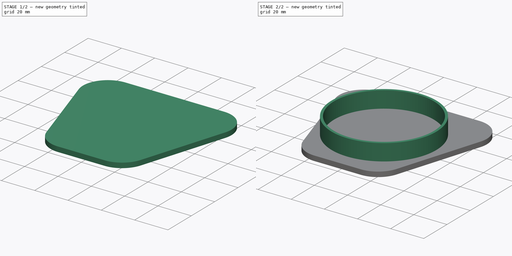
[diagram: build sequence overview — one tinted view per stage of 2, left to right]
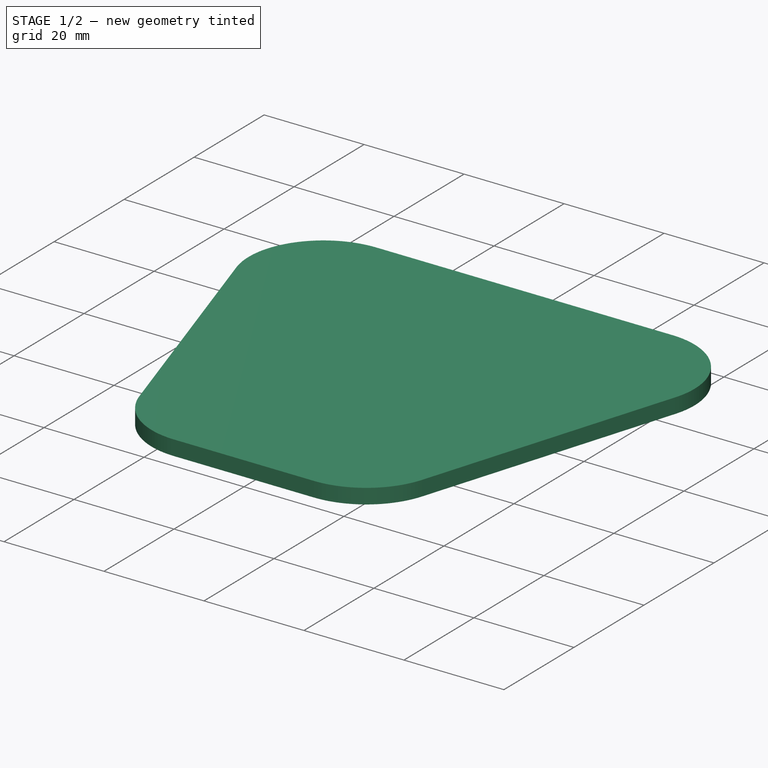
[diagram: stage 1 of 2 — iso view after this stage's code; geometry added in this stage tinted green]
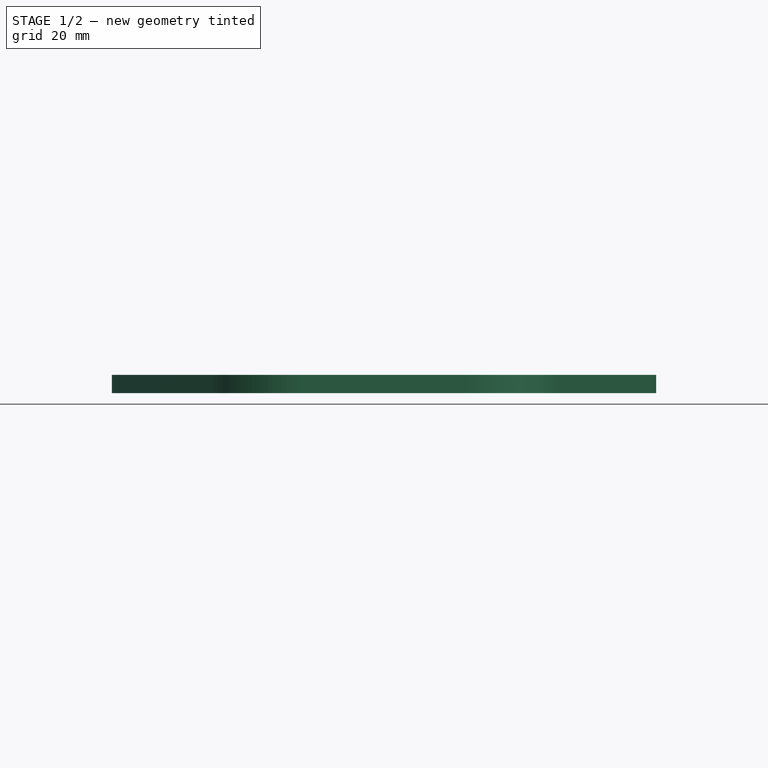
[diagram: stage 1 of 2 — front view after this stage's code; geometry added in this stage tinted green]
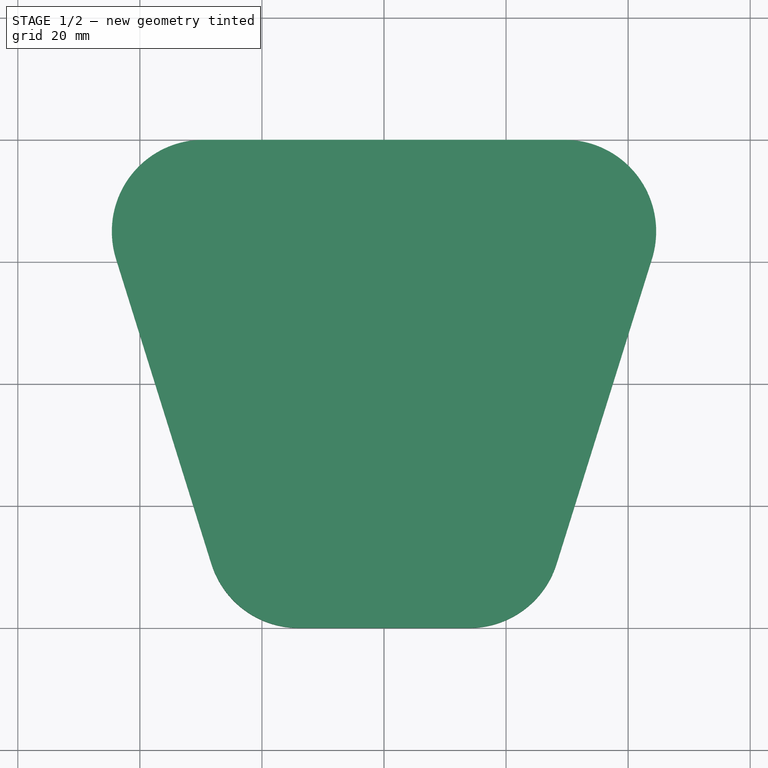
[diagram: stage 1 of 2 — top view after this stage's code; geometry added in this stage tinted green]
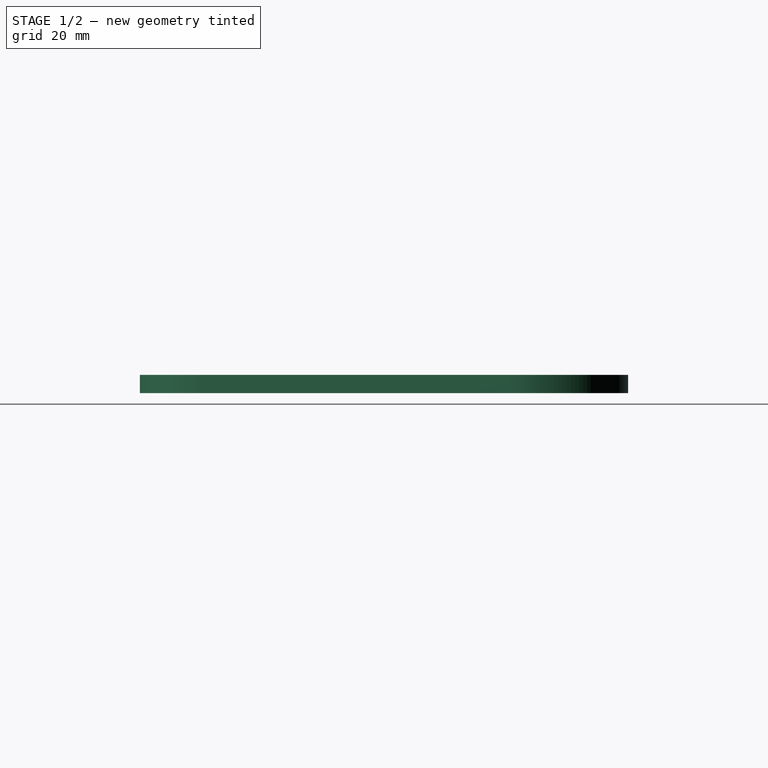
[diagram: stage 1 of 2 — right view after this stage's code; geometry added in this stage tinted green]
FCSTD DOCUMENT  (FreeCAD 2022.111R30764 (Git))
Label: speaker can stand
License: All rights reserved
LicenseURL: http://en.wikipedia.org/wiki/All_rights_reserved
objects: Sketcher::SketchObject×2, PartDesign::Pad×2, PartDesign::Body×1
note: 9 computed .brp shape members not serialized (recipe doc carries the construction recipe); baked Part::Feature solids carry a one-line shape summary decoded from their .brp

FEATURE [Sketcher::SketchObject] Sketch
  FullyConstrained = true
  MapMode = 5
  Support = -> [XY_Plane]
  TreeRank = 11
  sketch-geometry (14):
    g0: LineSegment StartX=29.5971 StartY=40 StartZ=0 EndX=-29.5971 EndY=40 EndZ=0
    g1: LineSegment StartX=-43.9143 StartY=20.5259 StartZ=0 EndX=-28.2893 EndY=-29.4741 EndZ=0
    g2: LineSegment StartX=-13.9721 StartY=-40 StartZ=0 EndX=13.9721 EndY=-40 EndZ=0
    g3: LineSegment StartX=28.2893 StartY=-29.4741 StartZ=0 EndX=43.9143 EndY=20.5259 EndZ=0
    g4: GeomPoint [constr] X=0 Y=40 Z=0
    g5: GeomPoint [constr] X=0 Y=-40 Z=0
    g6: ArcOfCircle CenterX=-29.5971 CenterY=25 CenterZ=0 NormalX=0 NormalY=0 NormalZ=1 AngleXU=0 Radius=15 StartAngle=1.5708 EndAngle=3.44448
    g7: GeomPoint [constr] X=-50 Y=40 Z=0
    g8: ArcOfCircle CenterX=29.5971 CenterY=25 CenterZ=0 NormalX=0 NormalY=0 NormalZ=1 AngleXU=0 Radius=15 StartAngle=5.9803 EndAngle=7.85398
    g9: GeomPoint [constr] X=50 Y=40 Z=0
    g10: ArcOfCircle CenterX=-13.9721 CenterY=-25 CenterZ=0 NormalX=0 NormalY=0 NormalZ=1 AngleXU=0 Radius=15 StartAngle=3.44448 EndAngle=4.71239
    g11: GeomPoint [constr] X=-25 Y=-40 Z=0
    g12: ArcOfCircle CenterX=13.9721 CenterY=-25 CenterZ=0 NormalX=0 NormalY=0 NormalZ=1 AngleXU=0 Radius=15 StartAngle=4.71239 EndAngle=5.9803
    g13: GeomPoint [constr] X=25 Y=-40 Z=0
  constraints (29):
    c: Symmetric(g7,g9,g-2)
    c: Symmetric(g11,g13,g-2)
    c: DistanceY(g13,g9) = 80
    c: DistanceX(g7,g9) = 100
    c: DistanceX(g11,g13) = 50
    c: PointOnObject(g4,g0)
    c: PointOnObject(g5,g2)
    c: PointOnObject(g4,g-2)
    c: Symmetric(g5,g4,g-1)
    c: PointOnObject(g7,g1)
    c: PointOnObject(g7,g0)
    c: PointOnObject(g9,g0)
    c: PointOnObject(g9,g3)
    c: PointOnObject(g11,g1)
    c: PointOnObject(g11,g2)
    c: PointOnObject(g13,g3)
    c: PointOnObject(g13,g2)
    c: Equal(g10,g12)
    c: Equal(g6,g8)
    c: Equal(g6,g10)
    c: Diameter(g6) = 30
    c: Tangent(g3,g8) = -1.5708
    c: Tangent(g8,g0) = -1.5708
    c: Tangent(g0,g6) = -1.5708
    c: Tangent(g6,g1) = -1.5708
    c: Tangent(g12,g2) = -1.5708
    c: Tangent(g12,g3) = -1.5708
    c: Tangent(g10,g2) = -1.5708
    c: Tangent(g10,g1) = -1.5708
FEATURE [PartDesign::Pad] Pad
  AddSubType = 0
  AlongSketchNormal = false
  CheckUpToFaceLimits = true
  ClaimChildren = false
  Direction = (0,0,1)
  Fit = 0
  FitJoin = 0
  InnerFit = 0
  InnerFitJoin = 0
  InnerTaperAngle = 0
  InnerTaperAngleRev = 0
  Length = 3
  Length2 = 100
  Linearize = true
  NewSolid = false
  Profile = -> Sketch
  Suppress = false
  TreeRank = 12
  Type = 0
  _ProfileBasedVersion = 1
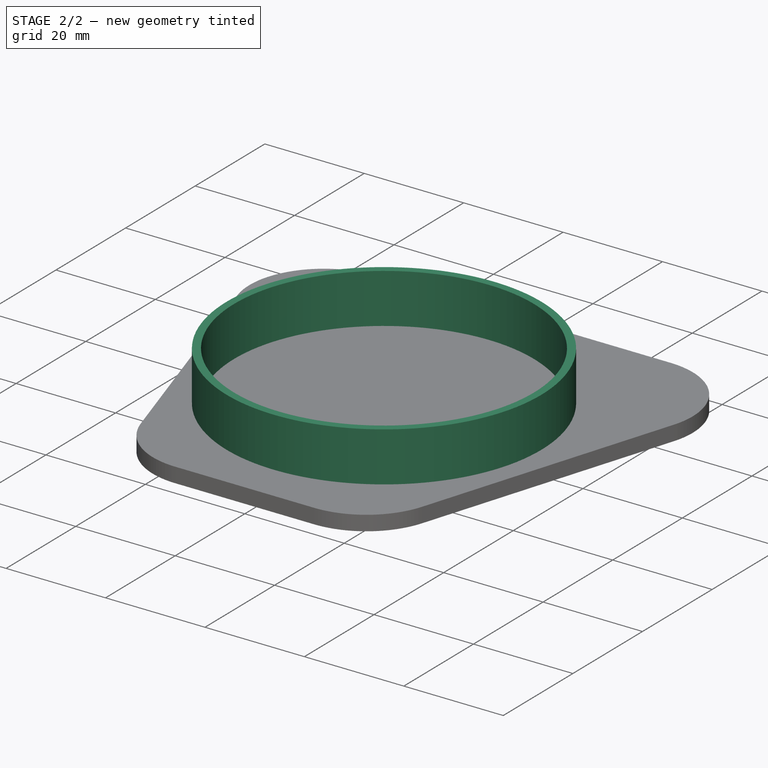
[diagram: stage 2 of 2 — iso view after this stage's code; geometry added in this stage tinted green]
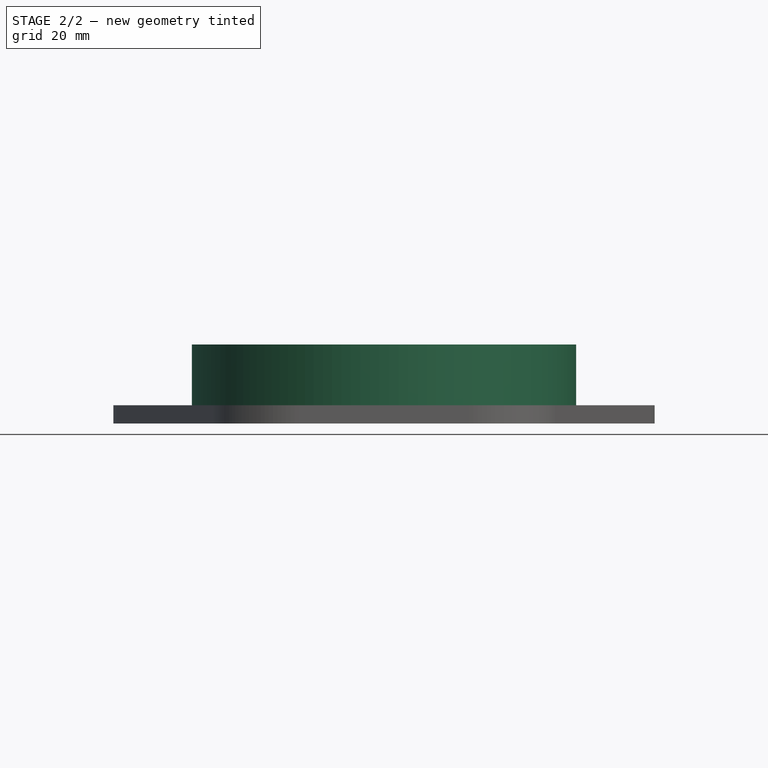
[diagram: stage 2 of 2 — front view after this stage's code; geometry added in this stage tinted green]
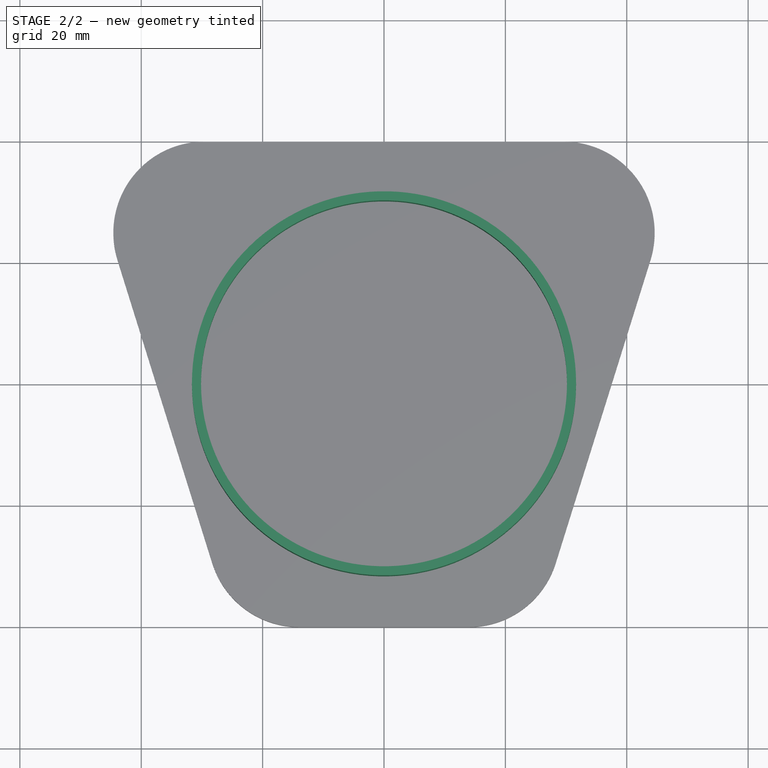
[diagram: stage 2 of 2 — top view after this stage's code; geometry added in this stage tinted green]
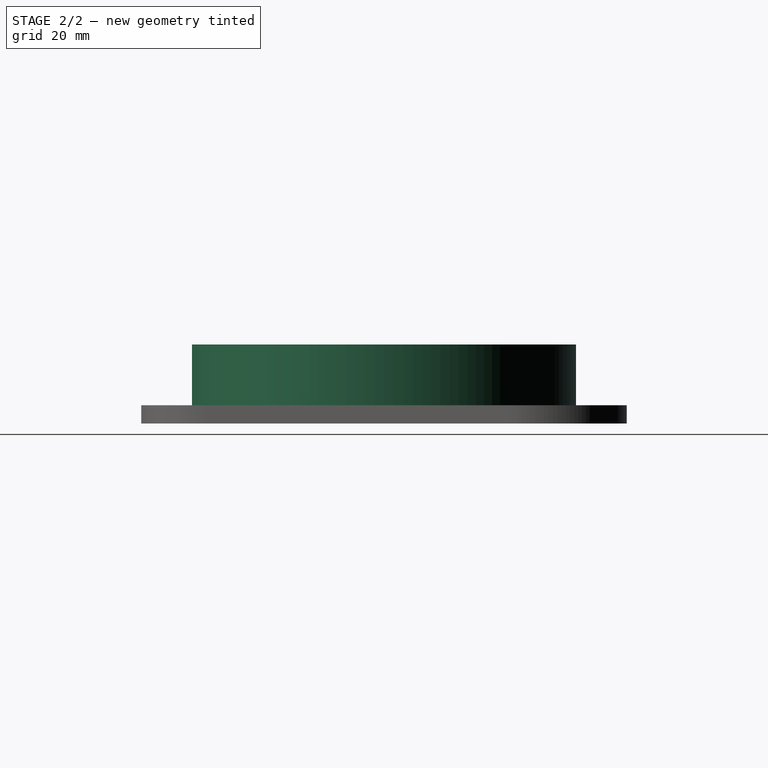
[diagram: stage 2 of 2 — right view after this stage's code; geometry added in this stage tinted green]
FEATURE [Sketcher::SketchObject] Sketch001
  FullyConstrained = true
  MapMode = 5
  Placement = pos=(0,0,3) rot=(0,0,1;0rad)
  Support = -> [Pad]
  TreeRank = 13
  sketch-geometry (2):
    g0: Circle CenterX=0 CenterY=0 CenterZ=0 NormalX=0 NormalY=0 NormalZ=1 AngleXU=0 Radius=31.65
    g1: Circle CenterX=0 CenterY=0 CenterZ=0 NormalX=0 NormalY=0 NormalZ=1 AngleXU=0 Radius=30.15
  constraints (4):
    c: Coincident(g0,g-1)
    c: Coincident(g1,g0)
    c: Diameter(g0) = 63.3
    c: Diameter(g1) = 60.3
FEATURE [PartDesign::Pad] Pad001
  AddSubType = 0
  AlongSketchNormal = false
  BaseFeature = -> Pad
  CheckUpToFaceLimits = true
  ClaimChildren = false
  Direction = (0,0,1)
  Fit = 0
  FitJoin = 0
  InnerFit = 0
  InnerFitJoin = 0
  InnerTaperAngle = 0
  InnerTaperAngleRev = 0
  Length = 10
  Length2 = 100
  Linearize = true
  NewSolid = false
  Profile = -> Sketch001
  Suppress = false
  TreeRank = 14
  Type = 0
  _ProfileBasedVersion = 1
FEATURE [PartDesign::Body] Body
  AutoGroupSolids = false
  ExportMode = 0
  Group = -> [Sketch,Pad,Sketch001,Pad001]
  Origin = -> Origin
  Tip = -> Pad001
  TreeRank = 10
  _ExportChildren = -> [Pad,Pad001]
  _GroupVersion = 1
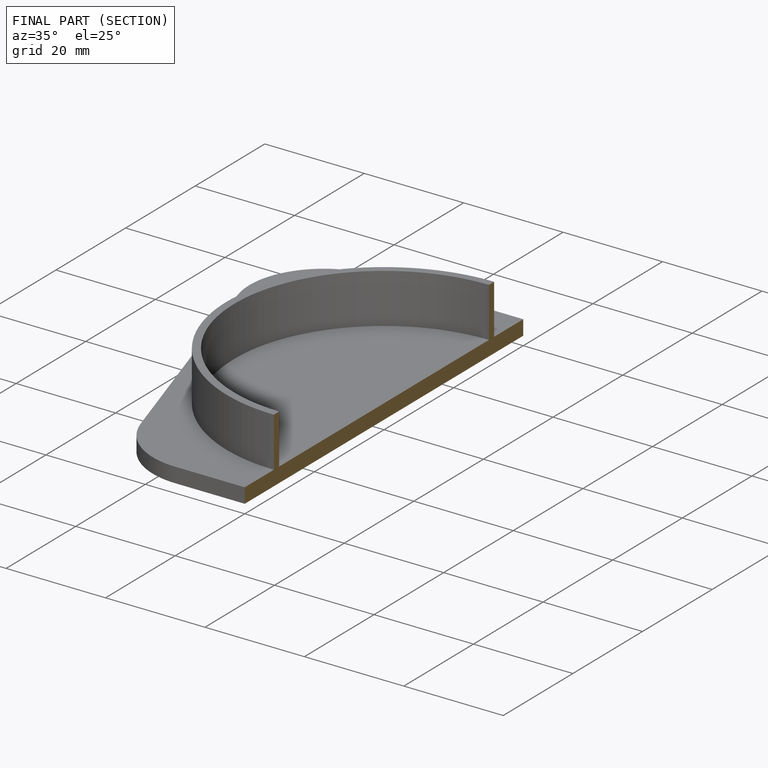
[diagram: finished part — half-section view (interior)]
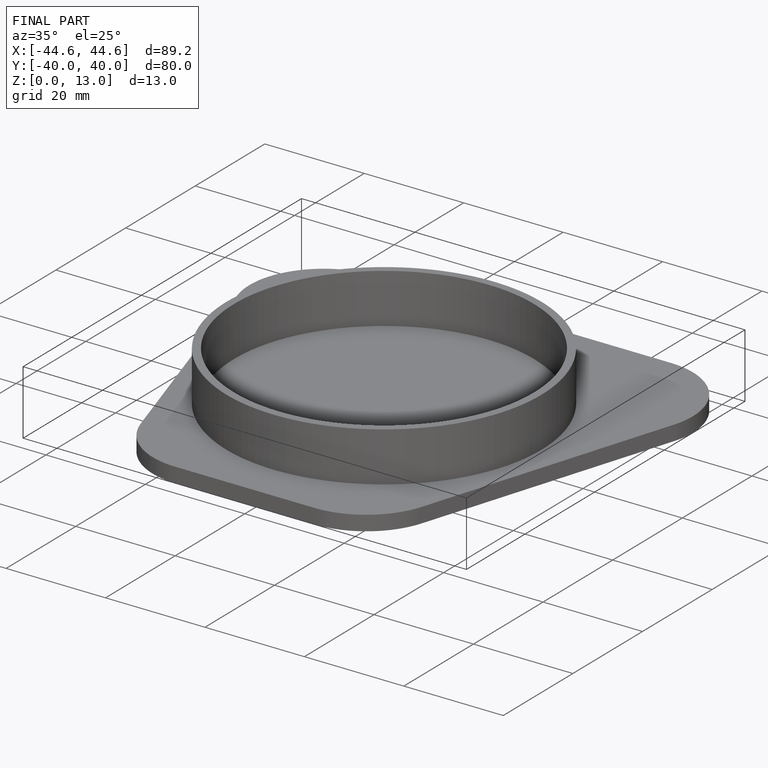
[diagram: finished part — iso view with bounding-box wireframe]
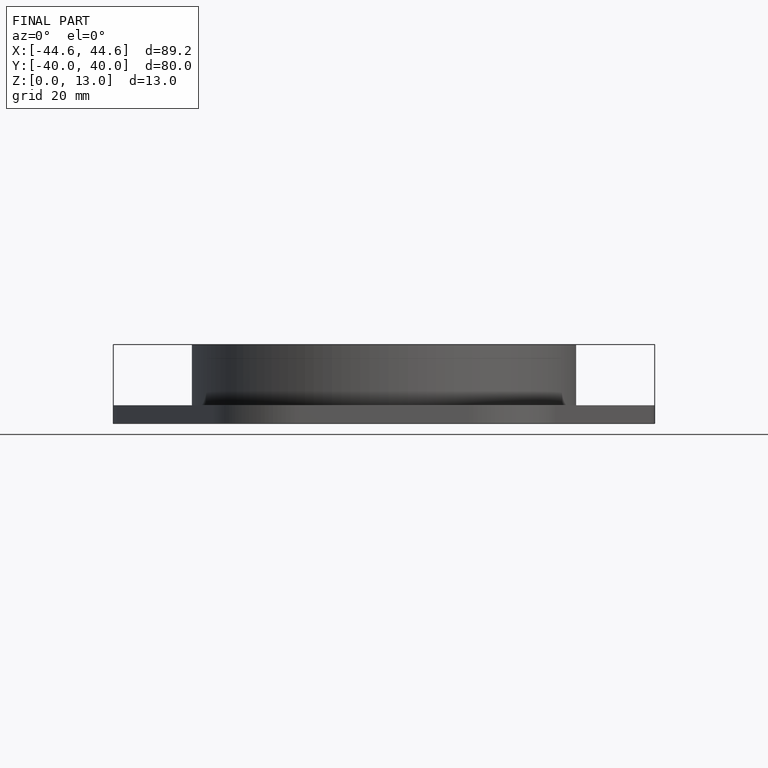
[diagram: finished part — front view with bounding-box wireframe]
